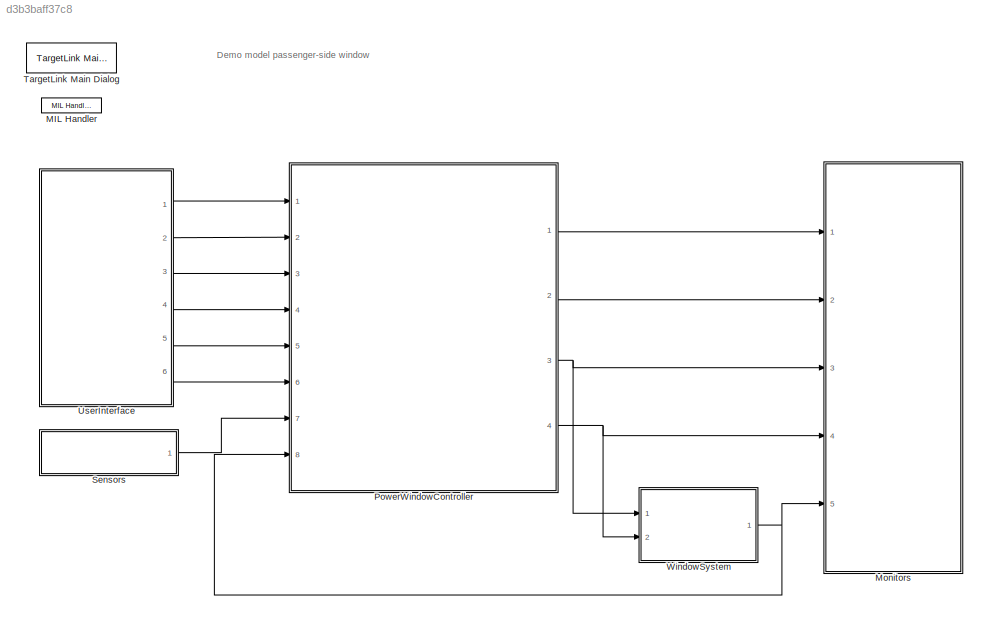
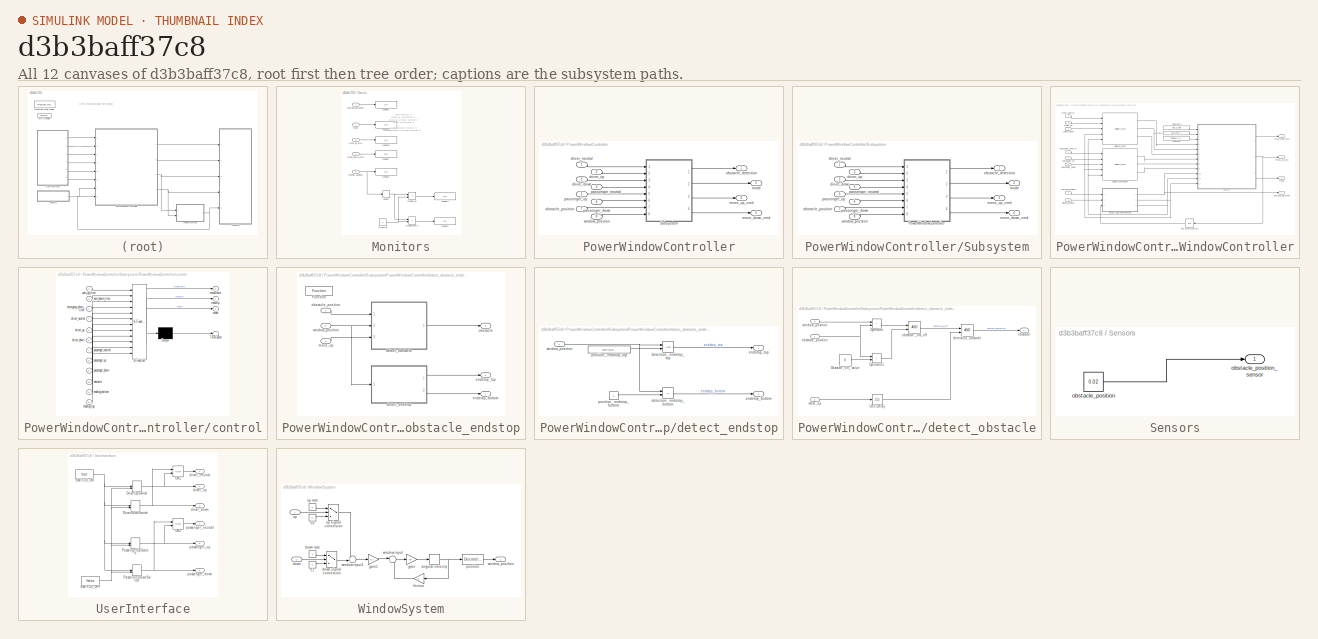
[diagram: thumbnail index - all 12 canvases of the model, root first then tree order]
MODEL slx_d3b3baff37c8
KIND model
CONFIG AbsTol = auto
CONFIG EnableMultiTasking = on
CONFIG FixedStep = 0.01
CONFIG InitFcn = , if any(exist('rtifpga_mdlclblib', 'file') ~= 0), rtifpga_mdlclblib('Init', bdroot); end,\nif exist('tlds_init','file'), tlds_init(gcs); end
CONFIG MaxStep = auto
CONFIG MinStep = auto
CONFIG PostLoadFcn = , if any(exist('dsrtsu_mdlpostloadfcn', 'file') == [2, 3, 6]), try dsrtsu_mdlpostloadfcn('Execute', bdroot); catch fprintf('Error in PostLoadFcn (dsrtsu_mdlpostloadfcn) for model "%s":\n %s\n', bdroot, lasterr); end, end, \nif exist('tl_postloadfcn','file'), tl_postloadfcn(gcs,'5.2.0.25'); end
CONFIG PreLoadFcn = if exist('tl_preloadfcn','file'), tl_preloadfcn(gcs,'5.2.0.25'); end
CONFIG RelTol = 1e-3
CONFIG SampleTimeConstraint = Unconstrained
CONFIG SolverName = ode3
CONFIG StartFcn = if exist('tlds_start','file'), tlds_start(gcs); end
CONFIG StartTime = 0.0
CONFIG StopFcn = if exist('tlds_stop','file'), tlds_stop(gcs); end
CONFIG StopTime = inf
WORKSPACE source: mxarray member
WORKSPACE obs_1 = 1
WORKSPACE obs_10 = 1
WORKSPACE obs_11 = 1
WORKSPACE obs_12 = 1
WORKSPACE obs_13 = 1
WORKSPACE obs_14 = 1
WORKSPACE obs_15 = 1
WORKSPACE obs_16 = 1
WORKSPACE obs_17 = 1
WORKSPACE obs_18 = 1
WORKSPACE obs_19 = 1
WORKSPACE obs_2 = 1
WORKSPACE obs_20 = 1
WORKSPACE obs_21 = 1
WORKSPACE obs_22 = 1
WORKSPACE obs_23 = 1
WORKSPACE obs_24 = 1
WORKSPACE obs_25 = 1
WORKSPACE obs_26 = 1
WORKSPACE obs_27 = 1
WORKSPACE obs_28 = 1
WORKSPACE obs_29 = 1
WORKSPACE obs_3 = 1
WORKSPACE obs_30 = 1
WORKSPACE obs_31 = 1
WORKSPACE obs_32 = 1
WORKSPACE obs_4 = 1
WORKSPACE obs_5 = 1
WORKSPACE obs_6 = 1
WORKSPACE obs_7 = 1
WORKSPACE obs_8 = 1
WORKSPACE obs_9 = 1
BLOCK [Reference] MIL Handler  REF=tllib/MIL Handler
  Ports = []
  SourceBlock = tllib/MIL Handler
  SourceProductName = dSPACE TargetLink common blockset
  SourceType = TL_MilHandler
BLOCK [SubSystem] Monitors
  Ports = [5]
  RequestExecContextInheritance = off
BLOCK [Constant] Monitors/Constant
  Value = 0
BLOCK [Display] Monitors/Display1
  Decimation = 1
  Ports = [1]
BLOCK [Display] Monitors/Display2
  Decimation = 1
  Ports = [1]
BLOCK [Display] Monitors/Display3
  Decimation = 1
  Ports = [1]
BLOCK [Display] Monitors/Display4
  Decimation = 1
  Ports = [1]
BLOCK [Display] Monitors/Display5
  Decimation = 1
  Ports = [1]
BLOCK [Display] Monitors/Display6
  Decimation = 1
  Ports = [1]
BLOCK [Display] Monitors/Display7
  Decimation = 1
  Ports = [1]
BLOCK [Inport] Monitors/mode
  Port = 2
BLOCK [Inport] Monitors/move_down_cmd
  Port = 4
BLOCK [Inport] Monitors/move_up_cmd
  Port = 3
BLOCK [RelationalOperator] Monitors/moving_down
  InputSameDT = off
  Operator = <
  OutDataTypeStr = boolean
  Ports = [2, 1]
BLOCK [RelationalOperator] Monitors/moving_up
  InputSameDT = off
  Operator = >
  OutDataTypeStr = boolean
  Ports = [2, 1]
BLOCK [Inport] Monitors/obstacle_detection
BLOCK [Derivative] Monitors/speed
BLOCK [Inport] Monitors/window_position
  Port = 5
BLOCK [SubSystem] PowerWindowController
  CopyFcn = if exist('tl_copyfcn','file'), tl_copyfcn(gcbh); end
  NameChangeFcn = if exist('tl_framenamechangefcn','file'), tl_framenamechangefcn(gcbh); end
  OpenFcn = if exist('open_tlsubsystem','file')\n   open_tlsubsystem(gcbh);\nelse\n   tlsubsystem = ...\n      find_system(gcb, ...\n      'LookUnderMasks','on', ...\n      'FollowLinks','on', ...\n      'Tag','MIL Subsystem');\n   open_system(tlsubsystem);\nend
  Ports = [8, 4]
  RequestExecContextInheritance = off
  Tag = TargetLink Simulation Frame
BLOCK [SubSystem] PowerWindowController/Subsystem
  OpenFcn = warndlg(get_param(gcb,'MaskHelp'),'Serious Warning');
  Ports = [8, 4]
  RequestExecContextInheritance = off
  Tag = struct('sfcnName','PowerWindowController_sf','subFunction','','srcSubsystem','')
  UserDataPersistent = on
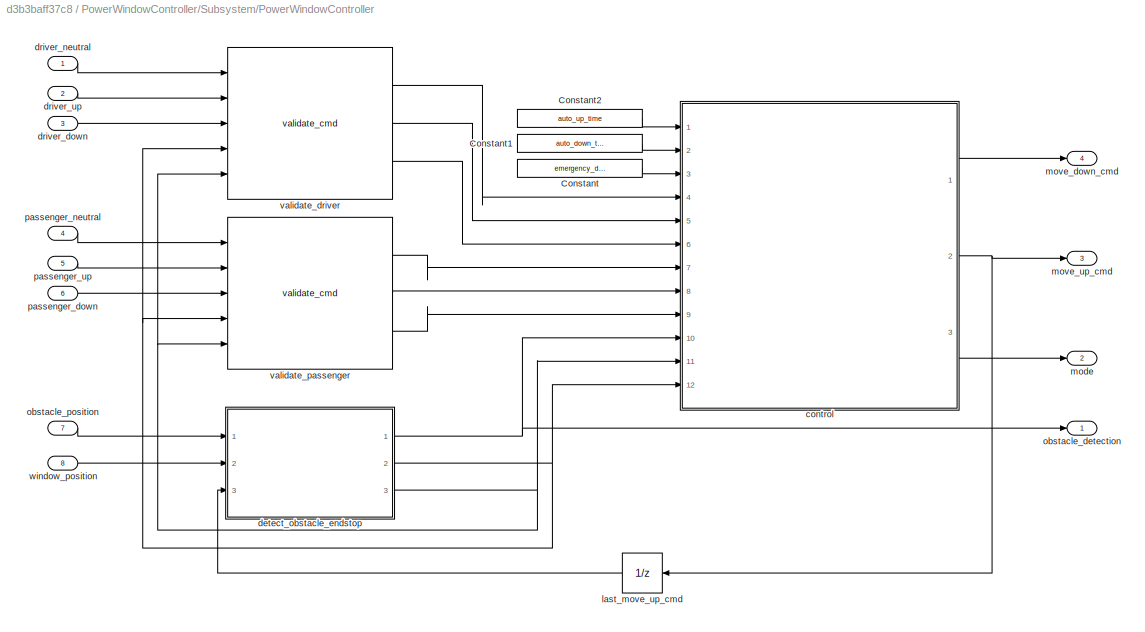
BLOCK [SubSystem] PowerWindowController/Subsystem/PowerWindowController
  CopyFcn = if exist('tl_copyfcn','file'), tl_copyfcn(gcbh); end
  Description = a
  DestroyFcn = if exist('update_tl_main_dlg','file'), update_tl_main_dlg('TL_subs_display'); end
  LoadFcn = if exist('TargetLink.SimFrameHandler.TLSubsystem','class')\n    TargetLink.SimFrameHandler.TLSubsystem.CreateWatchDog(gcbh);\nend
  NameChangeFcn = if exist('tl_namechangefcn','file'), tl_namechangefcn(gcbh); end
  Ports = [8, 4]
  RequestExecContextInheritance = off
  Tag = MIL Subsystem
  TreatAsAtomicUnit = on
BLOCK [Constant] PowerWindowController/Subsystem/PowerWindowController/Constant
  CopyFcn = if exist('copy_tlblock','file')==2,copy_tlblock(gcbh);end
  DeleteFcn = if exist('delete_tlblock','file')==2,delete_tlblock(gcbh);end
  NameChangeFcn = if exist('rename_tlblock','file')==2,rename_tlblock(gcbh);end
  OpenFcn = if exist('tl_open_blockdlg','file')==2,tl_open_blockdlg(gcbh);else,open_system(gcbh,'parameter');end
  Value = emergency_down_time
BLOCK [Constant] PowerWindowController/Subsystem/PowerWindowController/Constant1
  CopyFcn = if exist('copy_tlblock','file')==2,copy_tlblock(gcbh);end
  DeleteFcn = if exist('delete_tlblock','file')==2,delete_tlblock(gcbh);end
  NameChangeFcn = if exist('rename_tlblock','file')==2,rename_tlblock(gcbh);end
  OpenFcn = if exist('tl_open_blockdlg','file')==2,tl_open_blockdlg(gcbh);else,open_system(gcbh,'parameter');end
  Value = auto_down_time
BLOCK [Constant] PowerWindowController/Subsystem/PowerWindowController/Constant2
  CopyFcn = if exist('copy_tlblock','file')==2,copy_tlblock(gcbh);end
  DeleteFcn = if exist('delete_tlblock','file')==2,delete_tlblock(gcbh);end
  NameChangeFcn = if exist('rename_tlblock','file')==2,rename_tlblock(gcbh);end
  OpenFcn = if exist('tl_open_blockdlg','file')==2,tl_open_blockdlg(gcbh);else,open_system(gcbh,'parameter');end
  Value = auto_up_time
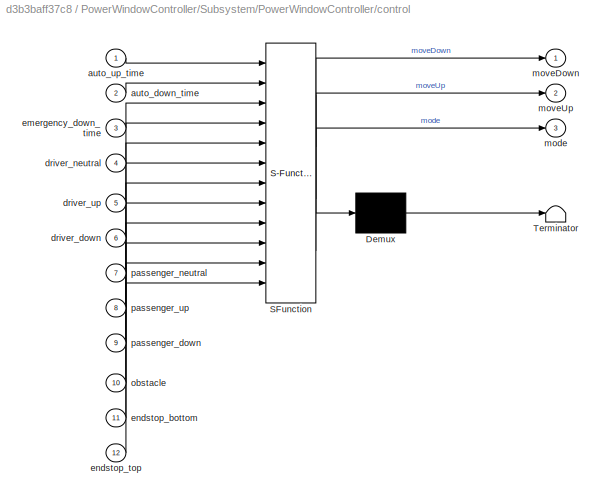
BLOCK [SubSystem] PowerWindowController/Subsystem/PowerWindowController/control
  ErrorFcn = Stateflow.Translate.translate
  PermitHierarchicalResolution = ExplicitOnly
  Ports = [12, 3]
  RequestExecContextInheritance = off
  SFBlockType = Chart
  TreatAsAtomicUnit = on
BLOCK [Demux] PowerWindowController/Subsystem/PowerWindowController/control/ Demux 
  Outputs = 1
  Ports = [1, 1]
BLOCK [S-Function] PowerWindowController/Subsystem/PowerWindowController/control/ SFunction 
  EnableBusSupport = on
  FunctionName = sf_sfun
  PortCounts = [12 4]
  Ports = [12, 4]
  SFcnIsStateOwnerBlock = off
  SFunctionDeploymentMode = off
  Tag = Stateflow S-Function 1
BLOCK [Terminator] PowerWindowController/Subsystem/PowerWindowController/control/ Terminator 
BLOCK [Inport] PowerWindowController/Subsystem/PowerWindowController/control/auto_down_time
  Port = 2
BLOCK [Inport] PowerWindowController/Subsystem/PowerWindowController/control/auto_up_time
BLOCK [Inport] PowerWindowController/Subsystem/PowerWindowController/control/driver_down
  Port = 6
BLOCK [Inport] PowerWindowController/Subsystem/PowerWindowController/control/driver_neutral
  Port = 4
BLOCK [Inport] PowerWindowController/Subsystem/PowerWindowController/control/driver_up
  Port = 5
BLOCK [Inport] PowerWindowController/Subsystem/PowerWindowController/control/emergency_down_time
  Port = 3
BLOCK [Inport] PowerWindowController/Subsystem/PowerWindowController/control/endstop_bottom
  Port = 11
BLOCK [Inport] PowerWindowController/Subsystem/PowerWindowController/control/endstop_top
  Port = 12
BLOCK [Outport] PowerWindowController/Subsystem/PowerWindowController/control/mode
  Port = 3
BLOCK [Outport] PowerWindowController/Subsystem/PowerWindowController/control/moveDown
BLOCK [Outport] PowerWindowController/Subsystem/PowerWindowController/control/moveUp
  Port = 2
BLOCK [Inport] PowerWindowController/Subsystem/PowerWindowController/control/obstacle
  Port = 10
BLOCK [Inport] PowerWindowController/Subsystem/PowerWindowController/control/passenger_down
  Port = 9
BLOCK [Inport] PowerWindowController/Subsystem/PowerWindowController/control/passenger_neutral
  Port = 7
BLOCK [Inport] PowerWindowController/Subsystem/PowerWindowController/control/passenger_up
  Port = 8
BLOCK [SubSystem] PowerWindowController/Subsystem/PowerWindowController/detect_obstacle_endstop
  Ports = [3, 3]
  RequestExecContextInheritance = off
  TreatAsAtomicUnit = on
BLOCK [Reference] PowerWindowController/Subsystem/PowerWindowController/detect_obstacle_endstop/Function  REF=tllib/Function
  Ports = []
  SourceBlock = tllib/Function
  SourceProductName = dSPACE TargetLink common blockset
  SourceType = TL_Function
BLOCK [SubSystem] PowerWindowController/Subsystem/PowerWindowController/detect_obstacle_endstop/detect_endstop
  Ports = [1, 2]
  RequestExecContextInheritance = off
BLOCK [RelationalOperator] PowerWindowController/Subsystem/PowerWindowController/detect_obstacle_endstop/detect_endstop/detection_ endstop_bottom
  CopyFcn = if exist('copy_tlblock','file')==2,copy_tlblock(gcbh);end
  DeleteFcn = if exist('delete_tlblock','file')==2,delete_tlblock(gcbh);end
  NameChangeFcn = if exist('rename_tlblock','file')==2,rename_tlblock(gcbh);end
  OpenFcn = if exist('tl_open_blockdlg','file')==2,tl_open_blockdlg(gcbh);else,open_system(gcbh,'parameter');end
  Operator = <=
  OutDataTypeStr = boolean
  Ports = [2, 1]
BLOCK [RelationalOperator] PowerWindowController/Subsystem/PowerWindowController/detect_obstacle_endstop/detect_endstop/detection_ endstop_top
  CopyFcn = if exist('copy_tlblock','file')==2,copy_tlblock(gcbh);end
  DeleteFcn = if exist('delete_tlblock','file')==2,delete_tlblock(gcbh);end
  NameChangeFcn = if exist('rename_tlblock','file')==2,rename_tlblock(gcbh);end
  OpenFcn = if exist('tl_open_blockdlg','file')==2,tl_open_blockdlg(gcbh);else,open_system(gcbh,'parameter');end
  OutDataTypeStr = boolean
  Ports = [2, 1]
BLOCK [Outport] PowerWindowController/Subsystem/PowerWindowController/detect_obstacle_endstop/detect_endstop/endstop_bottom
  Port = 2
BLOCK [Outport] PowerWindowController/Subsystem/PowerWindowController/detect_obstacle_endstop/detect_endstop/endstop_top
BLOCK [Constant] PowerWindowController/Subsystem/PowerWindowController/detect_obstacle_endstop/detect_endstop/position_ endstop_bottom
  CopyFcn = if exist('copy_tlblock','file')==2,copy_tlblock(gcbh);end
  DeleteFcn = if exist('delete_tlblock','file')==2,delete_tlblock(gcbh);end
  NameChangeFcn = if exist('rename_tlblock','file')==2,rename_tlblock(gcbh);end
  OpenFcn = if exist('tl_open_blockdlg','file')==2,tl_open_blockdlg(gcbh);else,open_system(gcbh,'parameter');end
  Value = 0
BLOCK [Constant] PowerWindowController/Subsystem/PowerWindowController/detect_obstacle_endstop/detect_endstop/position_ endstop_top
  CopyFcn = if exist('copy_tlblock','file')==2,copy_tlblock(gcbh);end
  DeleteFcn = if exist('delete_tlblock','file')==2,delete_tlblock(gcbh);end
  NameChangeFcn = if exist('rename_tlblock','file')==2,rename_tlblock(gcbh);end
  OpenFcn = if exist('tl_open_blockdlg','file')==2,tl_open_blockdlg(gcbh);else,open_system(gcbh,'parameter');end
  Value = position_endstop_top
BLOCK [Inport] PowerWindowController/Subsystem/PowerWindowController/detect_obstacle_endstop/detect_endstop/window_position
BLOCK [SubSystem] PowerWindowController/Subsystem/PowerWindowController/detect_obstacle_endstop/detect_obstacle
  Ports = [3, 1]
  RequestExecContextInheritance = off
BLOCK [Constant] PowerWindowController/Subsystem/PowerWindowController/detect_obstacle_endstop/detect_obstacle/Obstacle_off_ value
  CopyFcn = if exist('copy_tlblock','file')==2,copy_tlblock(gcbh);end
  DeleteFcn = if exist('delete_tlblock','file')==2,delete_tlblock(gcbh);end
  NameChangeFcn = if exist('rename_tlblock','file')==2,rename_tlblock(gcbh);end
  OpenFcn = if exist('tl_open_blockdlg','file')==2,tl_open_blockdlg(gcbh);else,open_system(gcbh,'parameter');end
  Value = 0
BLOCK [RelationalOperator] PowerWindowController/Subsystem/PowerWindowController/detect_obstacle_endstop/detect_obstacle/Operator
  CopyFcn = if exist('copy_tlblock','file')==2,copy_tlblock(gcbh);end
  DeleteFcn = if exist('delete_tlblock','file')==2,delete_tlblock(gcbh);end
  NameChangeFcn = if exist('rename_tlblock','file')==2,rename_tlblock(gcbh);end
  OpenFcn = if exist('tl_open_blockdlg','file')==2,tl_open_blockdlg(gcbh);else,open_system(gcbh,'parameter');end
  Operator = >
  OutDataTypeStr = boolean
  Ports = [2, 1]
BLOCK [RelationalOperator] PowerWindowController/Subsystem/PowerWindowController/detect_obstacle_endstop/detect_obstacle/Operator1
  CopyFcn = if exist('copy_tlblock','file')==2,copy_tlblock(gcbh);end
  DeleteFcn = if exist('delete_tlblock','file')==2,delete_tlblock(gcbh);end
  NameChangeFcn = if exist('rename_tlblock','file')==2,rename_tlblock(gcbh);end
  OpenFcn = if exist('tl_open_blockdlg','file')==2,tl_open_blockdlg(gcbh);else,open_system(gcbh,'parameter');end
  Operator = >
  OutDataTypeStr = boolean
  Ports = [2, 1]
BLOCK [UnitDelay] PowerWindowController/Subsystem/PowerWindowController/detect_obstacle_endstop/detect_obstacle/Unit Delay
  CopyFcn = if exist('copy_tlblock','file')==2,copy_tlblock(gcbh);end
  DeleteFcn = if exist('delete_tlblock','file')==2,delete_tlblock(gcbh);end
  HasFrameUpgradeWarning = on
  NameChangeFcn = if exist('rename_tlblock','file')==2,rename_tlblock(gcbh);end
  OpenFcn = if exist('tl_open_blockdlg','file')==2,tl_open_blockdlg(gcbh);else,open_system(gcbh,'parameter');end
  SampleTime = -1
BLOCK [Logic] PowerWindowController/Subsystem/PowerWindowController/detect_obstacle_endstop/detect_obstacle/detection_obstacle
  AllPortsSameDT = off
  CopyFcn = if exist('copy_tlblock','file')==2,copy_tlblock(gcbh);end
  DeleteFcn = if exist('delete_tlblock','file')==2,delete_tlblock(gcbh);end
  NameChangeFcn = if exist('rename_tlblock','file')==2,rename_tlblock(gcbh);end
  OpenFcn = if exist('tl_open_blockdlg','file')==2,tl_open_blockdlg(gcbh);else,open_system(gcbh,'parameter');end
  OutDataTypeStr = boolean
  Ports = [2, 1]
BLOCK [Inport] PowerWindowController/Subsystem/PowerWindowController/detect_obstacle_endstop/detect_obstacle/move_up
  Port = 3
BLOCK [Outport] PowerWindowController/Subsystem/PowerWindowController/detect_obstacle_endstop/detect_obstacle/obstacle
BLOCK [Logic] PowerWindowController/Subsystem/PowerWindowController/detect_obstacle_endstop/detect_obstacle/obstacle _om_off
  AllPortsSameDT = off
  CopyFcn = if exist('copy_tlblock','file')==2,copy_tlblock(gcbh);end
  DeleteFcn = if exist('delete_tlblock','file')==2,delete_tlblock(gcbh);end
  NameChangeFcn = if exist('rename_tlblock','file')==2,rename_tlblock(gcbh);end
  OpenFcn = if exist('tl_open_blockdlg','file')==2,tl_open_blockdlg(gcbh);else,open_system(gcbh,'parameter');end
  OutDataTypeStr = boolean
  Ports = [2, 1]
BLOCK [Inport] PowerWindowController/Subsystem/PowerWindowController/detect_obstacle_endstop/detect_obstacle/obstacle_position
BLOCK [Inport] PowerWindowController/Subsystem/PowerWindowController/detect_obstacle_endstop/detect_obstacle/window_position
  Port = 2
BLOCK [Outport] PowerWindowController/Subsystem/PowerWindowController/detect_obstacle_endstop/endstop_bottom
  Port = 3
BLOCK [Outport] PowerWindowController/Subsystem/PowerWindowController/detect_obstacle_endstop/endstop_top
  Port = 2
BLOCK [Inport] PowerWindowController/Subsystem/PowerWindowController/detect_obstacle_endstop/move_up
  Port = 3
BLOCK [Outport] PowerWindowController/Subsystem/PowerWindowController/detect_obstacle_endstop/obstacle
BLOCK [Inport] PowerWindowController/Subsystem/PowerWindowController/detect_obstacle_endstop/obstacle_position
BLOCK [Inport] PowerWindowController/Subsystem/PowerWindowController/detect_obstacle_endstop/window_position
  Port = 2
BLOCK [Inport] PowerWindowController/Subsystem/PowerWindowController/driver_down
  CopyFcn = if exist('copy_tlblock','file')==2,copy_tlblock(gcbh);end
  DeleteFcn = if exist('delete_tlblock','file')==2,delete_tlblock(gcbh);end
  NameChangeFcn = if exist('rename_tlblock','file')==2,rename_tlblock(gcbh);end
  OpenFcn = if exist('tl_open_blockdlg','file')==2,tl_open_blockdlg(gcbh);else,open_system(gcbh,'parameter');end
  Port = 3
  PortDimensions = 1
BLOCK [Inport] PowerWindowController/Subsystem/PowerWindowController/driver_neutral
  CopyFcn = if exist('copy_tlblock','file')==2,copy_tlblock(gcbh);end
  DeleteFcn = if exist('delete_tlblock','file')==2,delete_tlblock(gcbh);end
  NameChangeFcn = if exist('rename_tlblock','file')==2,rename_tlblock(gcbh);end
  OpenFcn = if exist('tl_open_blockdlg','file')==2,tl_open_blockdlg(gcbh);else,open_system(gcbh,'parameter');end
  PortDimensions = 1
BLOCK [Inport] PowerWindowController/Subsystem/PowerWindowController/driver_up
  CopyFcn = if exist('copy_tlblock','file')==2,copy_tlblock(gcbh);end
  DeleteFcn = if exist('delete_tlblock','file')==2,delete_tlblock(gcbh);end
  NameChangeFcn = if exist('rename_tlblock','file')==2,rename_tlblock(gcbh);end
  OpenFcn = if exist('tl_open_blockdlg','file')==2,tl_open_blockdlg(gcbh);else,open_system(gcbh,'parameter');end
  Port = 2
  PortDimensions = 1
BLOCK [UnitDelay] PowerWindowController/Subsystem/PowerWindowController/last_move_up_cmd
  CopyFcn = if exist('copy_tlblock','file')==2,copy_tlblock(gcbh);end
  DeleteFcn = if exist('delete_tlblock','file')==2,delete_tlblock(gcbh);end
  HasFrameUpgradeWarning = on
  NameChangeFcn = if exist('rename_tlblock','file')==2,rename_tlblock(gcbh);end
  OpenFcn = if exist('tl_open_blockdlg','file')==2,tl_open_blockdlg(gcbh);else,open_system(gcbh,'parameter');end
  SampleTime = -1
BLOCK [Outport] PowerWindowController/Subsystem/PowerWindowController/mode
  CopyFcn = if exist('copy_tlblock','file')==2,copy_tlblock(gcbh);end
  DeleteFcn = if exist('delete_tlblock','file')==2,delete_tlblock(gcbh);end
  NameChangeFcn = if exist('rename_tlblock','file')==2,rename_tlblock(gcbh);end
  OpenFcn = if exist('tl_open_blockdlg','file')==2,tl_open_blockdlg(gcbh);else,open_system(gcbh,'parameter');end
  OutDataTypeStr = uint8
  Port = 2
  PortDimensions = 1
BLOCK [Outport] PowerWindowController/Subsystem/PowerWindowController/move_down_cmd
  CopyFcn = if exist('copy_tlblock','file')==2,copy_tlblock(gcbh);end
  DeleteFcn = if exist('delete_tlblock','file')==2,delete_tlblock(gcbh);end
  NameChangeFcn = if exist('rename_tlblock','file')==2,rename_tlblock(gcbh);end
  OpenFcn = if exist('tl_open_blockdlg','file')==2,tl_open_blockdlg(gcbh);else,open_system(gcbh,'parameter');end
  Port = 4
  PortDimensions = 1
BLOCK [Outport] PowerWindowController/Subsystem/PowerWindowController/move_up_cmd
  CopyFcn = if exist('copy_tlblock','file')==2,copy_tlblock(gcbh);end
  DeleteFcn = if exist('delete_tlblock','file')==2,delete_tlblock(gcbh);end
  NameChangeFcn = if exist('rename_tlblock','file')==2,rename_tlblock(gcbh);end
  OpenFcn = if exist('tl_open_blockdlg','file')==2,tl_open_blockdlg(gcbh);else,open_system(gcbh,'parameter');end
  Port = 3
  PortDimensions = 1
BLOCK [Outport] PowerWindowController/Subsystem/PowerWindowController/obstacle_detection
  CopyFcn = if exist('copy_tlblock','file')==2,copy_tlblock(gcbh);end
  DeleteFcn = if exist('delete_tlblock','file')==2,delete_tlblock(gcbh);end
  NameChangeFcn = if exist('rename_tlblock','file')==2,rename_tlblock(gcbh);end
  OpenFcn = if exist('tl_open_blockdlg','file')==2,tl_open_blockdlg(gcbh);else,open_system(gcbh,'parameter');end
  PortDimensions = 1
BLOCK [Inport] PowerWindowController/Subsystem/PowerWindowController/obstacle_position
  CopyFcn = if exist('copy_tlblock','file')==2,copy_tlblock(gcbh);end
  DeleteFcn = if exist('delete_tlblock','file')==2,delete_tlblock(gcbh);end
  NameChangeFcn = if exist('rename_tlblock','file')==2,rename_tlblock(gcbh);end
  OpenFcn = if exist('tl_open_blockdlg','file')==2,tl_open_blockdlg(gcbh);else,open_system(gcbh,'parameter');end
  Port = 7
  PortDimensions = 1
BLOCK [Inport] PowerWindowController/Subsystem/PowerWindowController/passenger_down
  CopyFcn = if exist('copy_tlblock','file')==2,copy_tlblock(gcbh);end
  DeleteFcn = if exist('delete_tlblock','file')==2,delete_tlblock(gcbh);end
  NameChangeFcn = if exist('rename_tlblock','file')==2,rename_tlblock(gcbh);end
  OpenFcn = if exist('tl_open_blockdlg','file')==2,tl_open_blockdlg(gcbh);else,open_system(gcbh,'parameter');end
  Port = 6
  PortDimensions = 1
BLOCK [Inport] PowerWindowController/Subsystem/PowerWindowController/passenger_neutral
  CopyFcn = if exist('copy_tlblock','file')==2,copy_tlblock(gcbh);end
  DeleteFcn = if exist('delete_tlblock','file')==2,delete_tlblock(gcbh);end
  NameChangeFcn = if exist('rename_tlblock','file')==2,rename_tlblock(gcbh);end
  OpenFcn = if exist('tl_open_blockdlg','file')==2,tl_open_blockdlg(gcbh);else,open_system(gcbh,'parameter');end
  Port = 4
  PortDimensions = 1
BLOCK [Inport] PowerWindowController/Subsystem/PowerWindowController/passenger_up
  CopyFcn = if exist('copy_tlblock','file')==2,copy_tlblock(gcbh);end
  DeleteFcn = if exist('delete_tlblock','file')==2,delete_tlblock(gcbh);end
  NameChangeFcn = if exist('rename_tlblock','file')==2,rename_tlblock(gcbh);end
  OpenFcn = if exist('tl_open_blockdlg','file')==2,tl_open_blockdlg(gcbh);else,open_system(gcbh,'parameter');end
  Port = 5
  PortDimensions = 1
BLOCK [Reference] PowerWindowController/Subsystem/PowerWindowController/validate_driver  REF=powerwindow_blocklib/validate_cmd  (lib defined in slx_2b98fb8b01e4)
  Ports = [5, 3]
  SourceBlock = powerwindow_blocklib/validate_cmd
  SourceType = SubSystem
BLOCK [Reference] PowerWindowController/Subsystem/PowerWindowController/validate_passenger  REF=powerwindow_blocklib/validate_cmd  (lib defined in slx_2b98fb8b01e4)
  Ports = [5, 3]
  SourceBlock = powerwindow_blocklib/validate_cmd
  SourceType = SubSystem
BLOCK [Inport] PowerWindowController/Subsystem/PowerWindowController/window_position
  CopyFcn = if exist('copy_tlblock','file')==2,copy_tlblock(gcbh);end
  DeleteFcn = if exist('delete_tlblock','file')==2,delete_tlblock(gcbh);end
  NameChangeFcn = if exist('rename_tlblock','file')==2,rename_tlblock(gcbh);end
  OpenFcn = if exist('tl_open_blockdlg','file')==2,tl_open_blockdlg(gcbh);else,open_system(gcbh,'parameter');end
  Port = 8
  PortDimensions = 1
BLOCK [Inport] PowerWindowController/Subsystem/driver_down
  Port = 3
BLOCK [Inport] PowerWindowController/Subsystem/driver_neutral
BLOCK [Inport] PowerWindowController/Subsystem/driver_up
  Port = 2
BLOCK [Outport] PowerWindowController/Subsystem/mode
  Port = 2
BLOCK [Outport] PowerWindowController/Subsystem/move_down_cmd
  Port = 4
BLOCK [Outport] PowerWindowController/Subsystem/move_up_cmd
  Port = 3
BLOCK [Outport] PowerWindowController/Subsystem/obstacle_detection
BLOCK [Inport] PowerWindowController/Subsystem/obstacle_position
  Port = 7
BLOCK [Inport] PowerWindowController/Subsystem/passenger_down
  Port = 6
BLOCK [Inport] PowerWindowController/Subsystem/passenger_neutral
  Port = 4
BLOCK [Inport] PowerWindowController/Subsystem/passenger_up
  Port = 5
BLOCK [Inport] PowerWindowController/Subsystem/window_position
  Port = 8
BLOCK [Inport] PowerWindowController/driver_down
  Port = 3
BLOCK [Inport] PowerWindowController/driver_neutral
BLOCK [Inport] PowerWindowController/driver_up
  Port = 2
BLOCK [Outport] PowerWindowController/mode
  OutDataTypeStr = uint8
  Port = 2
BLOCK [Outport] PowerWindowController/move_down_cmd
  Port = 4
BLOCK [Outport] PowerWindowController/move_up_cmd
  Port = 3
BLOCK [Outport] PowerWindowController/obstacle_detection
BLOCK [Inport] PowerWindowController/obstacle_position
  Port = 7
BLOCK [Inport] PowerWindowController/passenger_down
  Port = 6
BLOCK [Inport] PowerWindowController/passenger_neutral
  Port = 4
BLOCK [Inport] PowerWindowController/passenger_up
  Port = 5
BLOCK [Inport] PowerWindowController/window_position
  Port = 8
BLOCK [SubSystem] Sensors
  Ports = [0, 1]
  RequestExecContextInheritance = off
BLOCK [Constant] Sensors/obstacle_position
  OutDataTypeStr = double
  Value = 0.02
BLOCK [Outport] Sensors/obstacle_position_sensor
BLOCK [Reference] TargetLink Main Dialog  REF=tllib/TargetLink Main Dialog
  Ports = []
  SourceBlock = tllib/TargetLink Main Dialog
  SourceProductName = dSPACE TargetLink common blockset
  SourceType = TL_MainDialog
BLOCK [SubSystem] UserInterface
  Ports = [0, 6]
  RequestExecContextInheritance = off
BLOCK [ManualSwitch] UserInterface/DriverDownSwitch
  CurrentSetting = 0
BLOCK [ManualSwitch] UserInterface/DriverUpSwitch
  CurrentSetting = 0
BLOCK [Logic] UserInterface/OR1
  AllPortsSameDT = off
  Operator = NOR
  OutDataTypeStr = boolean
  Ports = [2, 1]
BLOCK [Logic] UserInterface/OR2
  AllPortsSameDT = off
  Operator = NOR
  OutDataTypeStr = boolean
  Ports = [2, 1]
BLOCK [ManualSwitch] UserInterface/PassengerDownSwitch
  CurrentSetting = 0
BLOCK [ManualSwitch] UserInterface/PassengerUpSwitch
  CurrentSetting = 0
BLOCK [Constant] UserInterface/SWITCH_OFF
  OutDataTypeStr = boolean
  Value = false
BLOCK [Constant] UserInterface/SWITCH_ON
  OutDataTypeStr = boolean
  Value = true
BLOCK [Outport] UserInterface/driver_down
  Port = 3
BLOCK [Outport] UserInterface/driver_neutral
BLOCK [Outport] UserInterface/driver_up
  Port = 2
BLOCK [Outport] UserInterface/passenger_down
  Port = 6
BLOCK [Outport] UserInterface/passenger_neutral
  Port = 4
BLOCK [Outport] UserInterface/passenger_up
  Port = 5
BLOCK [SubSystem] WindowSystem
  Ports = [2, 1]
  RequestExecContextInheritance = off
BLOCK [DiscreteIntegrator] WindowSystem/angular velocity
  ICPrevOutput = DiscIntNeverNeededParam
  ICPrevScaledInput = DiscIntNeverNeededParam
  Ports = [1, 1]
  SampleTime = 0.01
BLOCK [Constant] WindowSystem/c0
  Value = 0
BLOCK [Constant] WindowSystem/c1
  Value = 0
BLOCK [Inport] WindowSystem/down
  Port = 2
BLOCK [Constant] WindowSystem/down rate
  NameLocation = top
  Value = -1
BLOCK [Switch] WindowSystem/down signal conversion
  SaturateOnIntegerOverflow = off
  Threshold = 0.5
BLOCK [Gain] WindowSystem/friction
  OutDataTypeStr = Inherit: Same as input
  ParamDataTypeStr = Inherit: Same as input
  SaturateOnIntegerOverflow = on
BLOCK [Gain] WindowSystem/gain
  Gain = 50
  OutDataTypeStr = Inherit: Same as input
  ParamDataTypeStr = Inherit: Same as input
  SaturateOnIntegerOverflow = on
BLOCK [Gain] WindowSystem/gain1
  Gain = 0.1
  OutDataTypeStr = Inherit: Same as input
  ParamDataTypeStr = Inherit: Same as input
  SaturateOnIntegerOverflow = on
BLOCK [DiscreteIntegrator] WindowSystem/position
  ICPrevOutput = DiscIntNeverNeededParam
  ICPrevScaledInput = DiscIntNeverNeededParam
  LimitOutput = on
  LowerSaturationLimit = 0
  Ports = [1, 1]
  SampleTime = 0.01
  UpperSaturationLimit = position_endstop_top
BLOCK [Inport] WindowSystem/up
BLOCK [Constant] WindowSystem/up rate
  NameLocation = top
BLOCK [Switch] WindowSystem/up signal conversion
  SaturateOnIntegerOverflow = off
  Threshold = 0.5
BLOCK [Sum] WindowSystem/window input
  InputSameDT = on
  Inputs = |+-
  OutDataTypeStr = Inherit: Same as first input
  Ports = [2, 1]
  SaturateOnIntegerOverflow = on
BLOCK [Sum] WindowSystem/window input1
  InputSameDT = on
  Inputs = ++|
  OutDataTypeStr = Inherit: Same as first input
  Ports = [2, 1]
  SaturateOnIntegerOverflow = on
BLOCK [Outport] WindowSystem/window_position
ANNOTATION (root): Demo model passenger-side window
ANNOTATION Monitors: STOP MODE: 0 MANUAL UP MODE: 1 MANUAL DOWN MODE: 2 AUTO UP MODE: 3 AUTO DOWN MODE: 4 EMERGENCY DOWN MODE: 5
NET Monitors/Constant:1 -> Monitors/moving_down:2, Monitors/moving_up:2
LINE Monitors/mode:1 -> Monitors/Display2:1
LINE Monitors/move_down_cmd:1 -> Monitors/Display7:1
LINE Monitors/move_up_cmd:1 -> Monitors/Display6:1
LINE Monitors/moving_down:1 -> Monitors/Display5:1
LINE Monitors/moving_up:1 -> Monitors/Display4:1
LINE Monitors/obstacle_detection:1 -> Monitors/Display1:1
NET Monitors/speed:1 -> Monitors/moving_down:1, Monitors/moving_up:1
NET Monitors/window_position:1 -> Monitors/Display3:1, Monitors/speed:1
LINE PowerWindowController/Subsystem/PowerWindowController/Constant1:1 -> PowerWindowController/Subsystem/PowerWindowController/control:2
LINE PowerWindowController/Subsystem/PowerWindowController/Constant2:1 -> PowerWindowController/Subsystem/PowerWindowController/control:1
LINE PowerWindowController/Subsystem/PowerWindowController/Constant:1 -> PowerWindowController/Subsystem/PowerWindowController/control:3
LINE PowerWindowController/Subsystem/PowerWindowController/control:1 -> PowerWindowController/Subsystem/PowerWindowController/move_down_cmd:1
NET PowerWindowController/Subsystem/PowerWindowController/control:2 -> PowerWindowController/Subsystem/PowerWindowController/last_move_up_cmd:1, PowerWindowController/Subsystem/PowerWindowController/move_up_cmd:1
LINE PowerWindowController/Subsystem/PowerWindowController/control:3 -> PowerWindowController/Subsystem/PowerWindowController/mode:1
LINE PowerWindowController/Subsystem/PowerWindowController/detect_obstacle_endstop/detect_endstop/detection_ endstop_bottom:1 -> PowerWindowController/Subsystem/PowerWindowController/detect_obstacle_endstop/detect_endstop/endstop_bottom:1
LINE PowerWindowController/Subsystem/PowerWindowController/detect_obstacle_endstop/detect_endstop/detection_ endstop_top:1 -> PowerWindowController/Subsystem/PowerWindowController/detect_obstacle_endstop/detect_endstop/endstop_top:1
LINE PowerWindowController/Subsystem/PowerWindowController/detect_obstacle_endstop/detect_endstop/position_ endstop_bottom:1 -> PowerWindowController/Subsystem/PowerWindowController/detect_obstacle_endstop/detect_endstop/detection_ endstop_bottom:2
LINE PowerWindowController/Subsystem/PowerWindowController/detect_obstacle_endstop/detect_endstop/position_ endstop_top:1 -> PowerWindowController/Subsystem/PowerWindowController/detect_obstacle_endstop/detect_endstop/detection_ endstop_top:2
NET PowerWindowController/Subsystem/PowerWindowController/detect_obstacle_endstop/detect_endstop/window_position:1 -> PowerWindowController/Subsystem/PowerWindowController/detect_obstacle_endstop/detect_endstop/detection_ endstop_bottom:1, PowerWindowController/Subsystem/PowerWindowController/detect_obstacle_endstop/detect_endstop/detection_ endstop_top:1
LINE PowerWindowController/Subsystem/PowerWindowController/detect_obstacle_endstop/detect_endstop:1 -> PowerWindowController/Subsystem/PowerWindowController/detect_obstacle_endstop/endstop_top:1
LINE PowerWindowController/Subsystem/PowerWindowController/detect_obstacle_endstop/detect_endstop:2 -> PowerWindowController/Subsystem/PowerWindowController/detect_obstacle_endstop/endstop_bottom:1
LINE PowerWindowController/Subsystem/PowerWindowController/detect_obstacle_endstop/detect_obstacle/Obstacle_off_ value:1 -> PowerWindowController/Subsystem/PowerWindowController/detect_obstacle_endstop/detect_obstacle/Operator1:2
LINE PowerWindowController/Subsystem/PowerWindowController/detect_obstacle_endstop/detect_obstacle/Operator1:1 -> PowerWindowController/Subsystem/PowerWindowController/detect_obstacle_endstop/detect_obstacle/obstacle _om_off:2
LINE PowerWindowController/Subsystem/PowerWindowController/detect_obstacle_endstop/detect_obstacle/Operator:1 -> PowerWindowController/Subsystem/PowerWindowController/detect_obstacle_endstop/detect_obstacle/obstacle _om_off:1
LINE PowerWindowController/Subsystem/PowerWindowController/detect_obstacle_endstop/detect_obstacle/Unit Delay:1 -> PowerWindowController/Subsystem/PowerWindowController/detect_obstacle_endstop/detect_obstacle/detection_obstacle:2
LINE PowerWindowController/Subsystem/PowerWindowController/detect_obstacle_endstop/detect_obstacle/detection_obstacle:1 -> PowerWindowController/Subsystem/PowerWindowController/detect_obstacle_endstop/detect_obstacle/obstacle:1
LINE PowerWindowController/Subsystem/PowerWindowController/detect_obstacle_endstop/detect_obstacle/move_up:1 -> PowerWindowController/Subsystem/PowerWindowController/detect_obstacle_endstop/detect_obstacle/Unit Delay:1
LINE PowerWindowController/Subsystem/PowerWindowController/detect_obstacle_endstop/detect_obstacle/obstacle _om_off:1 -> PowerWindowController/Subsystem/PowerWindowController/detect_obstacle_endstop/detect_obstacle/detection_obstacle:1
NET PowerWindowController/Subsystem/PowerWindowController/detect_obstacle_endstop/detect_obstacle/obstacle_position:1 -> PowerWindowController/Subsystem/PowerWindowController/detect_obstacle_endstop/detect_obstacle/Operator1:1, PowerWindowController/Subsystem/PowerWindowController/detect_obstacle_endstop/detect_obstacle/Operator:2
LINE PowerWindowController/Subsystem/PowerWindowController/detect_obstacle_endstop/detect_obstacle/window_position:1 -> PowerWindowController/Subsystem/PowerWindowController/detect_obstacle_endstop/detect_obstacle/Operator:1
LINE PowerWindowController/Subsystem/PowerWindowController/detect_obstacle_endstop/detect_obstacle:1 -> PowerWindowController/Subsystem/PowerWindowController/detect_obstacle_endstop/obstacle:1
LINE PowerWindowController/Subsystem/PowerWindowController/detect_obstacle_endstop/move_up:1 -> PowerWindowController/Subsystem/PowerWindowController/detect_obstacle_endstop/detect_obstacle:3
LINE PowerWindowController/Subsystem/PowerWindowController/detect_obstacle_endstop/obstacle_position:1 -> PowerWindowController/Subsystem/PowerWindowController/detect_obstacle_endstop/detect_obstacle:1
NET PowerWindowController/Subsystem/PowerWindowController/detect_obstacle_endstop/window_position:1 -> PowerWindowController/Subsystem/PowerWindowController/detect_obstacle_endstop/detect_endstop:1, PowerWindowController/Subsystem/PowerWindowController/detect_obstacle_endstop/detect_obstacle:2
NET PowerWindowController/Subsystem/PowerWindowController/detect_obstacle_endstop:1 -> PowerWindowController/Subsystem/PowerWindowController/control:10, PowerWindowController/Subsystem/PowerWindowController/obstacle_detection:1
NET PowerWindowController/Subsystem/PowerWindowController/detect_obstacle_endstop:2 -> PowerWindowController/Subsystem/PowerWindowController/control:12, PowerWindowController/Subsystem/PowerWindowController/validate_driver:4, PowerWindowController/Subsystem/PowerWindowController/validate_passenger:4
NET PowerWindowController/Subsystem/PowerWindowController/detect_obstacle_endstop:3 -> PowerWindowController/Subsystem/PowerWindowController/control:11, PowerWindowController/Subsystem/PowerWindowController/validate_driver:5, PowerWindowController/Subsystem/PowerWindowController/validate_passenger:5
LINE PowerWindowController/Subsystem/PowerWindowController/driver_down:1 -> PowerWindowController/Subsystem/PowerWindowController/validate_driver:3
LINE PowerWindowController/Subsystem/PowerWindowController/driver_neutral:1 -> PowerWindowController/Subsystem/PowerWindowController/validate_driver:1
LINE PowerWindowController/Subsystem/PowerWindowController/driver_up:1 -> PowerWindowController/Subsystem/PowerWindowController/validate_driver:2
LINE PowerWindowController/Subsystem/PowerWindowController/last_move_up_cmd:1 -> PowerWindowController/Subsystem/PowerWindowController/detect_obstacle_endstop:3
LINE PowerWindowController/Subsystem/PowerWindowController/obstacle_position:1 -> PowerWindowController/Subsystem/PowerWindowController/detect_obstacle_endstop:1
LINE PowerWindowController/Subsystem/PowerWindowController/passenger_down:1 -> PowerWindowController/Subsystem/PowerWindowController/validate_passenger:3
LINE PowerWindowController/Subsystem/PowerWindowController/passenger_neutral:1 -> PowerWindowController/Subsystem/PowerWindowController/validate_passenger:1
LINE PowerWindowController/Subsystem/PowerWindowController/passenger_up:1 -> PowerWindowController/Subsystem/PowerWindowController/validate_passenger:2
LINE PowerWindowController/Subsystem/PowerWindowController/validate_driver:1 -> PowerWindowController/Subsystem/PowerWindowController/control:4
LINE PowerWindowController/Subsystem/PowerWindowController/validate_driver:2 -> PowerWindowController/Subsystem/PowerWindowController/control:5
LINE PowerWindowController/Subsystem/PowerWindowController/validate_driver:3 -> PowerWindowController/Subsystem/PowerWindowController/control:6
LINE PowerWindowController/Subsystem/PowerWindowController/validate_passenger:1 -> PowerWindowController/Subsystem/PowerWindowController/control:7
LINE PowerWindowController/Subsystem/PowerWindowController/validate_passenger:2 -> PowerWindowController/Subsystem/PowerWindowController/control:8
LINE PowerWindowController/Subsystem/PowerWindowController/validate_passenger:3 -> PowerWindowController/Subsystem/PowerWindowController/control:9
LINE PowerWindowController/Subsystem/PowerWindowController/window_position:1 -> PowerWindowController/Subsystem/PowerWindowController/detect_obstacle_endstop:2
LINE PowerWindowController/Subsystem/PowerWindowController:1 -> PowerWindowController/Subsystem/obstacle_detection:1
LINE PowerWindowController/Subsystem/PowerWindowController:2 -> PowerWindowController/Subsystem/mode:1
LINE PowerWindowController/Subsystem/PowerWindowController:3 -> PowerWindowController/Subsystem/move_up_cmd:1
LINE PowerWindowController/Subsystem/PowerWindowController:4 -> PowerWindowController/Subsystem/move_down_cmd:1
LINE PowerWindowController/Subsystem/driver_down:1 -> PowerWindowController/Subsystem/PowerWindowController:3
LINE PowerWindowController/Subsystem/driver_neutral:1 -> PowerWindowController/Subsystem/PowerWindowController:1
LINE PowerWindowController/Subsystem/driver_up:1 -> PowerWindowController/Subsystem/PowerWindowController:2
LINE PowerWindowController/Subsystem/obstacle_position:1 -> PowerWindowController/Subsystem/PowerWindowController:7
LINE PowerWindowController/Subsystem/passenger_down:1 -> PowerWindowController/Subsystem/PowerWindowController:6
LINE PowerWindowController/Subsystem/passenger_neutral:1 -> PowerWindowController/Subsystem/PowerWindowController:4
LINE PowerWindowController/Subsystem/passenger_up:1 -> PowerWindowController/Subsystem/PowerWindowController:5
LINE PowerWindowController/Subsystem/window_position:1 -> PowerWindowController/Subsystem/PowerWindowController:8
LINE PowerWindowController/Subsystem:1 -> PowerWindowController/obstacle_detection:1
LINE PowerWindowController/Subsystem:2 -> PowerWindowController/mode:1
LINE PowerWindowController/Subsystem:3 -> PowerWindowController/move_up_cmd:1
LINE PowerWindowController/Subsystem:4 -> PowerWindowController/move_down_cmd:1
LINE PowerWindowController/driver_down:1 -> PowerWindowController/Subsystem:3
LINE PowerWindowController/driver_neutral:1 -> PowerWindowController/Subsystem:1
LINE PowerWindowController/driver_up:1 -> PowerWindowController/Subsystem:2
LINE PowerWindowController/obstacle_position:1 -> PowerWindowController/Subsystem:7
LINE PowerWindowController/passenger_down:1 -> PowerWindowController/Subsystem:6
LINE PowerWindowController/passenger_neutral:1 -> PowerWindowController/Subsystem:4
LINE PowerWindowController/passenger_up:1 -> PowerWindowController/Subsystem:5
LINE PowerWindowController/window_position:1 -> PowerWindowController/Subsystem:8
LINE PowerWindowController:1 -> Monitors:1
LINE PowerWindowController:2 -> Monitors:2
NET PowerWindowController:3 -> Monitors:3, WindowSystem:1
NET PowerWindowController:4 -> Monitors:4, WindowSystem:2
LINE Sensors/obstacle_position:1 -> Sensors/obstacle_position_sensor:1
LINE Sensors:1 -> PowerWindowController:7
NET UserInterface/DriverDownSwitch:1 -> UserInterface/OR1:1, UserInterface/driver_down:1
NET UserInterface/DriverUpSwitch:1 -> UserInterface/OR1:2, UserInterface/driver_up:1
LINE UserInterface/OR1:1 -> UserInterface/driver_neutral:1
LINE UserInterface/OR2:1 -> UserInterface/passenger_neutral:1
NET UserInterface/PassengerDownSwitch:1 -> UserInterface/OR2:1, UserInterface/passenger_down:1
NET UserInterface/PassengerUpSwitch:1 -> UserInterface/OR2:2, UserInterface/passenger_up:1
NET UserInterface/SWITCH_OFF:1 -> UserInterface/DriverDownSwitch:2, UserInterface/DriverUpSwitch:2, UserInterface/PassengerDownSwitch:2, UserInterface/PassengerUpSwitch:2
NET UserInterface/SWITCH_ON:1 -> UserInterface/DriverDownSwitch:1, UserInterface/DriverUpSwitch:1, UserInterface/PassengerDownSwitch:1, UserInterface/PassengerUpSwitch:1
LINE UserInterface:1 -> PowerWindowController:1
LINE UserInterface:2 -> PowerWindowController:2
LINE UserInterface:3 -> PowerWindowController:3
LINE UserInterface:4 -> PowerWindowController:4
LINE UserInterface:5 -> PowerWindowController:5
LINE UserInterface:6 -> PowerWindowController:6
NET WindowSystem/angular velocity:1 -> WindowSystem/friction:1, WindowSystem/position:1
LINE WindowSystem/c0:1 -> WindowSystem/up signal conversion:3
LINE WindowSystem/c1:1 -> WindowSystem/down signal conversion:3
LINE WindowSystem/down rate:1 -> WindowSystem/down signal conversion:1
LINE WindowSystem/down signal conversion:1 -> WindowSystem/window input1:2
LINE WindowSystem/down:1 -> WindowSystem/down signal conversion:2
LINE WindowSystem/friction:1 -> WindowSystem/window input:2
LINE WindowSystem/gain1:1 -> WindowSystem/window input:1
LINE WindowSystem/gain:1 -> WindowSystem/angular velocity:1
LINE WindowSystem/position:1 -> WindowSystem/window_position:1
LINE WindowSystem/up rate:1 -> WindowSystem/up signal conversion:1
LINE WindowSystem/up signal conversion:1 -> WindowSystem/window input1:1
LINE WindowSystem/up:1 -> WindowSystem/up signal conversion:2
LINE WindowSystem/window input1:1 -> WindowSystem/gain1:1
LINE WindowSystem/window input:1 -> WindowSystem/gain:1
NET WindowSystem:1 -> Monitors:5, PowerWindowController:8
note: NET lines group one-source signal fan-out (src -> all destinations, sorted); 1:1 wires keep LINE
CHART PowerWindowController/Subsystem/PowerWindowController/control states=23 transitions=39
  STATE_LABEL 'systemNormal'
  STATE_LABEL 'safe'
  STATE_LABEL 'driverNeutral\nentry:\nmoveUp = 0;\nmoveDown = 0;'
  STATE_LABEL 'passengerneutral\nentry:\nmoveUp = 0;\nmoveDown = 0;\nmode = 0;'
  STATE_LABEL 'passengerDown\nentry: moveDown = 1;\nexit: moveDown = 0;'
  STATE_LABEL 'iniPassengerDown\nentry:\nmode = 2;'
  STATE_LABEL 'autoPassengerDown\nentry:\nmode =4;'
  STATE_LABEL 'passengerDown\nentry:\nmode = 2;'
  STATE_LABEL 'after(auto_down_time,tick)'
  STATE_LABEL '[passenger_neutral]'
  STATE_LABEL 'passengerUp\nentry: moveUp = 1;\nexit: moveUp = 0;'
  STATE_LABEL 'iniPassengerUp\nentry:\nmode = 1;'
  STATE_LABEL 'PassengerUp\nentry:\nmode = 1;'
  STATE_LABEL 'autoPassengerUp\nentry:\nmode =3;'
  STATE_LABEL 'after(auto_up_time,tick)'
  STATE_LABEL '[passenger_neutral]'
  STATE_LABEL '[passenger_up]'
  STATE_LABEL '[passenger_down]'
  STATE_LABEL '[passenger_neutral]'
  STATE_LABEL '[passenger_neutral]'
  STATE_LABEL '[endstop_bottom]'
  STATE_LABEL '[endstop_top]'
  STATE_LABEL '[passenger_up]'
  STATE_LABEL '[passenger_down]'
  STATE_LABEL 'driverDown\nentry: moveDown = 1;\nexit: moveDown = 0;'
  STATE_LABEL 'iniDriverDown\nentry:\nmode = 2;'
  STATE_LABEL 'DriverDown\nentry:\nmode = 2;'
  STATE_LABEL 'autoDriverDown\nentry:\nmode = 4;'
  STATE_LABEL 'after(auto_down_time,tick)'
  STATE_LABEL '[driver_neutral]'
  STATE_LABEL 'driverUp\nentry: moveUp = 1;\nexit: moveUp = 0;'
  STATE_LABEL 'iniDriverUp\nentry:\nmode = 1;'
  STATE_LABEL 'DriverUp\nentry:\nmode =1;'
  STATE_LABEL 'autoDriverUp\nentry:\nmode = 3;'
  STATE_LABEL 'after(auto_up_time,tick)'
  STATE_LABEL '[driver_neutral]'
  STATE_LABEL '[driver_down]'
  STATE_LABEL '[driver_neutral]'
  STATE_LABEL '[endstop_bottom]'
  STATE_LABEL '[driver_neutral]'
CHART  states=0 transitions=0
